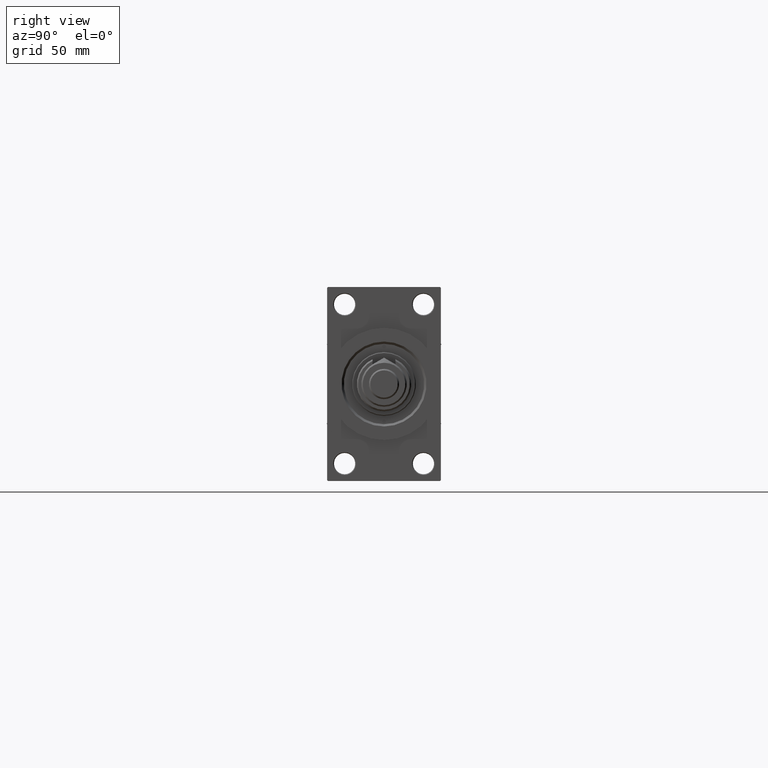
[diagram: clean part render]
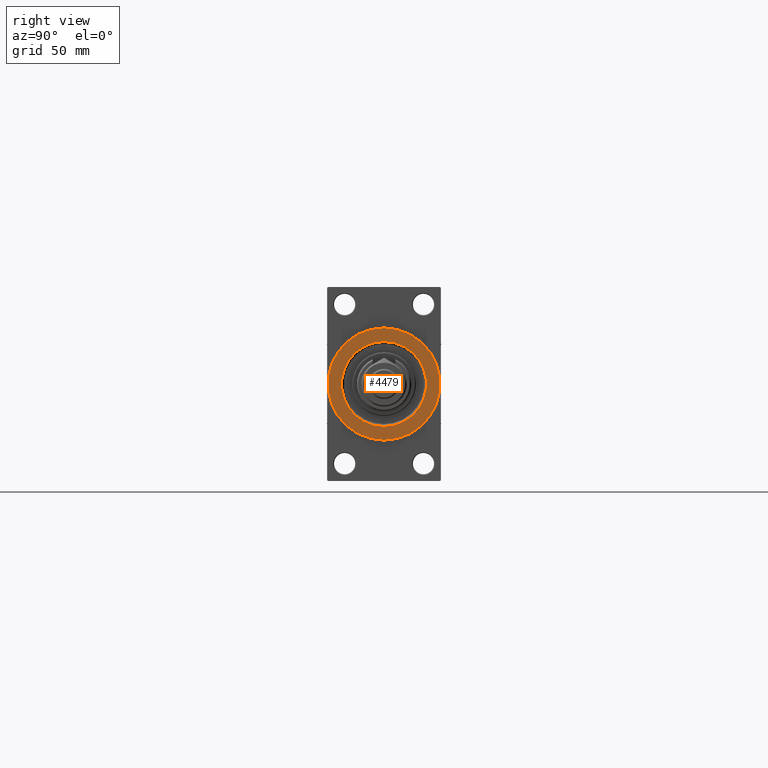
[diagram: same view with one face highlighted and labeled with its STEP entity id]
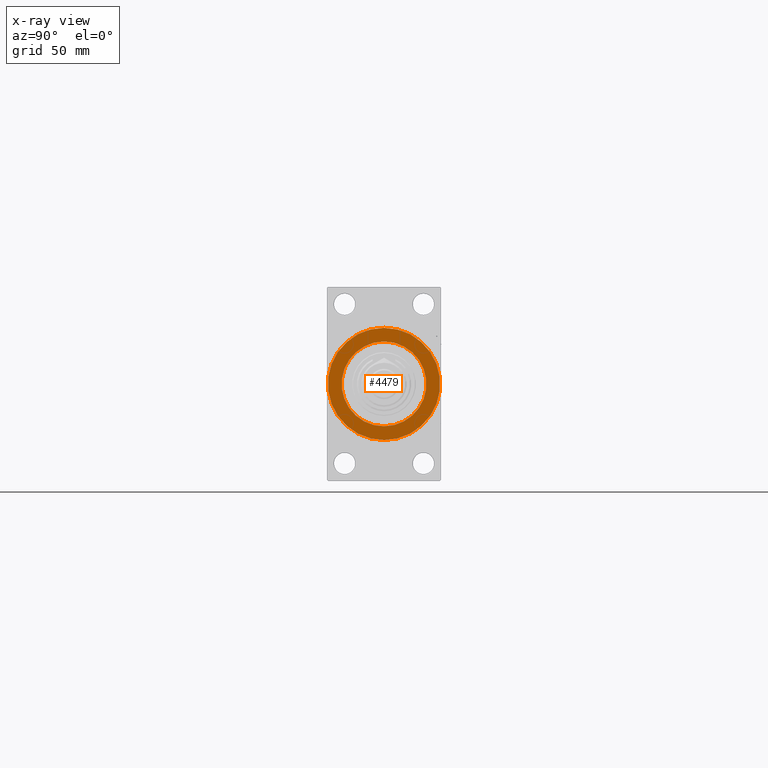
[diagram: x-ray of the same camera — body ghosted, the highlighted face saturated]
A machine part, right view. The second image highlights one B-rep face of the part: STEP entity #4479.
The next image is the same camera in x-ray: the body ghosted, the highlighted face saturated — about 0% of this face is hidden behind the body in this view.
In plain terms, the highlighted planar face has unit normal (1, 0, 0).
Its self-contained STEP definition (entity closure, byte-faithful):
#235 = DIRECTION ( 'NONE',  ( 0.000000000000000000, 0.000000000000000000, -1.000000000000000000 ) ) ;
#1903 = EDGE_LOOP ( 'NONE', ( #26677, #15534 ) ) ;
#2516 = DIRECTION ( 'NONE',  ( 1.000000000000000000, 0.000000000000000000, 0.000000000000000000 ) ) ;
#4213 = DIRECTION ( 'NONE',  ( 0.000000000000000000, 0.000000000000000000, -1.000000000000000000 ) ) ;
#4248 = DIRECTION ( 'NONE',  ( -1.000000000000000000, -0.000000000000000000, -0.000000000000000000 ) ) ;
#4479 = ADVANCED_FACE ( 'NONE', ( #12100, #27569 ), #42843, .T. ) ;
#6266 = AXIS2_PLACEMENT_3D ( 'NONE', #19902, #19163, #30830 ) ;
#8795 = AXIS2_PLACEMENT_3D ( 'NONE', #14226, #2516, #45208 ) ;
#10361 = CIRCLE ( 'NONE', #26694, 27.99999999999996803 ) ;
#10426 = CIRCLE ( 'NONE', #8795, 37.00000000000000000 ) ;
#12100 = FACE_BOUND ( 'NONE', #1903, .T. ) ;
#14140 = EDGE_CURVE ( 'NONE', #14763, #27311, #39517, .T. ) ;
#14226 = CARTESIAN_POINT ( 'NONE',  ( 333.9999999999999432, 0.000000000000000000, 0.000000000000000000 ) ) ;
#14763 = VERTEX_POINT ( 'NONE', #15148 ) ;
#15148 = CARTESIAN_POINT ( 'NONE',  ( 333.9999999999999432, 3.429011037612585332E-15, 27.99999999999996803 ) ) ;
#15534 = ORIENTED_EDGE ( 'NONE', *, *, #14140, .T. ) ;
#16397 = CARTESIAN_POINT ( 'NONE',  ( 333.9999999999999432, 0.000000000000000000, 0.000000000000000000 ) ) ;
#16596 = AXIS2_PLACEMENT_3D ( 'NONE', #16397, #39029, #4213 ) ;
#17023 = CARTESIAN_POINT ( 'NONE',  ( 333.9999999999999432, 0.000000000000000000, -27.99999999999996803 ) ) ;
#17205 = CARTESIAN_POINT ( 'NONE',  ( 333.9999999999999432, 4.531193156845206793E-15, -37.00000000000000000 ) ) ;
#18343 = EDGE_CURVE ( 'NONE', #27311, #14763, #10361, .T. ) ;
#19163 = DIRECTION ( 'NONE',  ( 1.000000000000000000, 0.000000000000000000, 0.000000000000000000 ) ) ;
#19737 = DIRECTION ( 'NONE',  ( 0.000000000000000000, 0.000000000000000000, -1.000000000000000000 ) ) ;
#19902 = CARTESIAN_POINT ( 'NONE',  ( 333.9999999999999432, 0.000000000000000000, 0.000000000000000000 ) ) ;
#24116 = DIRECTION ( 'NONE',  ( -1.000000000000000000, -0.000000000000000000, -0.000000000000000000 ) ) ;
#26677 = ORIENTED_EDGE ( 'NONE', *, *, #18343, .T. ) ;
#26694 = AXIS2_PLACEMENT_3D ( 'NONE', #34989, #4248, #19737 ) ;
#27311 = VERTEX_POINT ( 'NONE', #17023 ) ;
#27569 = FACE_OUTER_BOUND ( 'NONE', #37747, .T. ) ;
#28151 = CIRCLE ( 'NONE', #6266, 37.00000000000000000 ) ;
#30830 = DIRECTION ( 'NONE',  ( 0.000000000000000000, 0.000000000000000000, -1.000000000000000000 ) ) ;
#31480 = CARTESIAN_POINT ( 'NONE',  ( 333.9999999999999432, 0.000000000000000000, 0.000000000000000000 ) ) ;
#34989 = CARTESIAN_POINT ( 'NONE',  ( 333.9999999999999432, 0.000000000000000000, 0.000000000000000000 ) ) ;
#37070 = AXIS2_PLACEMENT_3D ( 'NONE', #31480, #24116, #235 ) ;
#37747 = EDGE_LOOP ( 'NONE', ( #40052, #46159 ) ) ;
#39029 = DIRECTION ( 'NONE',  ( 1.000000000000000000, 0.000000000000000000, 0.000000000000000000 ) ) ;
#39517 = CIRCLE ( 'NONE', #37070, 27.99999999999996803 ) ;
#39998 = VERTEX_POINT ( 'NONE', #47110 ) ;
#40052 = ORIENTED_EDGE ( 'NONE', *, *, #47701, .T. ) ;
#42843 = PLANE ( 'NONE',  #16596 ) ;
#44641 = VERTEX_POINT ( 'NONE', #17205 ) ;
#45161 = EDGE_CURVE ( 'NONE', #44641, #39998, #28151, .T. ) ;
#45208 = DIRECTION ( 'NONE',  ( 0.000000000000000000, 0.000000000000000000, -1.000000000000000000 ) ) ;
#46159 = ORIENTED_EDGE ( 'NONE', *, *, #45161, .T. ) ;
#47110 = CARTESIAN_POINT ( 'NONE',  ( 333.9999999999999432, 0.000000000000000000, 37.00000000000000000 ) ) ;
#47701 = EDGE_CURVE ( 'NONE', #39998, #44641, #10426, .T. ) ;